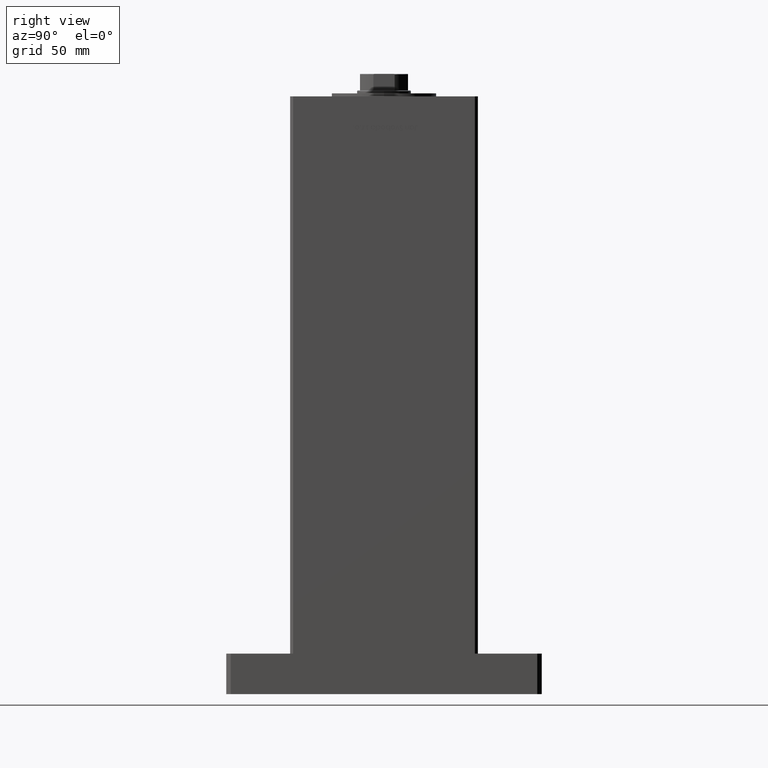
[diagram: clean part render]
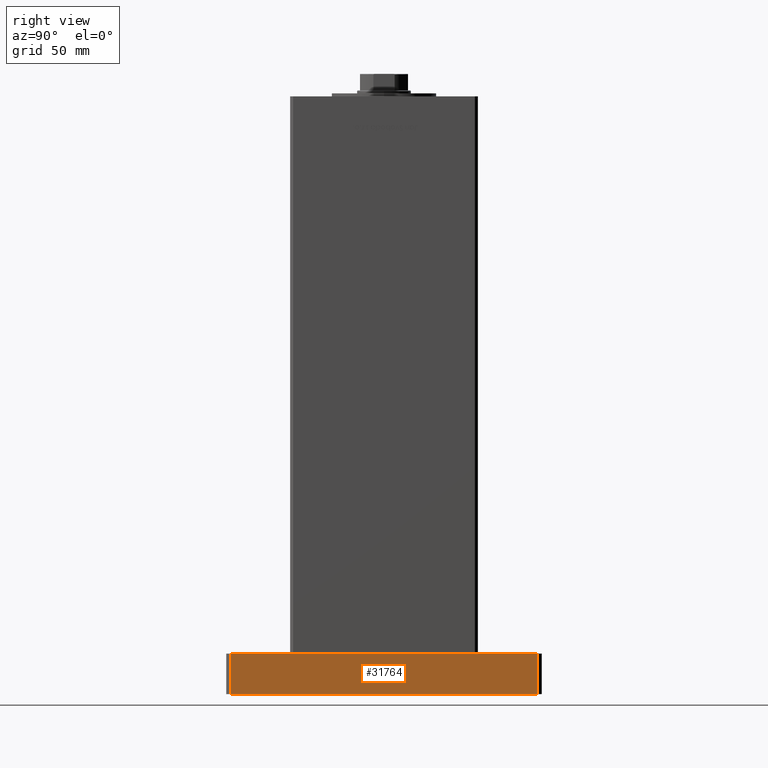
[diagram: same view with one face highlighted and labeled with its STEP entity id]
A machine part, right view. The second image highlights one B-rep face of the part: STEP entity #31764.
In plain terms, the highlighted planar face has unit normal (-1, 0, 0).
Its self-contained STEP definition (entity closure, byte-faithful):
#2034 = ORIENTED_EDGE ( 'NONE', *, *, #24457, .T. ) ;
#3323 = LINE ( 'NONE', #7211, #27870 ) ;
#3789 = CARTESIAN_POINT ( 'NONE',  ( 75.00000000000000000, -101.9999999999999005, 27.00000000000000000 ) ) ;
#4608 = EDGE_LOOP ( 'NONE', ( #2034, #15281, #33470, #36655 ) ) ;
#4916 = EDGE_CURVE ( 'NONE', #11032, #18243, #41191, .T. ) ;
#5781 = VECTOR ( 'NONE', #43929, 1000.000000000000000 ) ;
#6654 = DIRECTION ( 'NONE',  ( -0.000000000000000000, -0.000000000000000000, -1.000000000000000000 ) ) ;
#7211 = CARTESIAN_POINT ( 'NONE',  ( 75.00000000000000000, -101.9999999999999005, 27.00000000000000000 ) ) ;
#7694 = DIRECTION ( 'NONE',  ( -1.000000000000000000, 6.802837160693364103E-17, 0.000000000000000000 ) ) ;
#8974 = VECTOR ( 'NONE', #24577, 1000.000000000000000 ) ;
#9561 = CARTESIAN_POINT ( 'NONE',  ( 75.00000000000000000, -101.9999999999999005, 0.000000000000000000 ) ) ;
#11032 = VERTEX_POINT ( 'NONE', #13766 ) ;
#13766 = CARTESIAN_POINT ( 'NONE',  ( 75.00000000000000000, -101.9999999999999005, 27.00000000000000000 ) ) ;
#15281 = ORIENTED_EDGE ( 'NONE', *, *, #20793, .F. ) ;
#18243 = VERTEX_POINT ( 'NONE', #45837 ) ;
#20793 = EDGE_CURVE ( 'NONE', #18243, #47921, #36111, .T. ) ;
#20989 = PLANE ( 'NONE',  #47592 ) ;
#21266 = DIRECTION ( 'NONE',  ( -6.802837160693364103E-17, -1.000000000000000000, 0.000000000000000000 ) ) ;
#21340 = CARTESIAN_POINT ( 'NONE',  ( 75.00000000000000000, -101.9999999999999005, 0.000000000000000000 ) ) ;
#22220 = EDGE_CURVE ( 'NONE', #11032, #27161, #3323, .T. ) ;
#24457 = EDGE_CURVE ( 'NONE', #27161, #47921, #47524, .T. ) ;
#24577 = DIRECTION ( 'NONE',  ( 6.802837160693364103E-17, 1.000000000000000000, 0.000000000000000000 ) ) ;
#27161 = VERTEX_POINT ( 'NONE', #21340 ) ;
#27870 = VECTOR ( 'NONE', #6654, 1000.000000000000000 ) ;
#30482 = CARTESIAN_POINT ( 'NONE',  ( 75.00000000000001421, 102.0000000000000142, 0.000000000000000000 ) ) ;
#31764 = ADVANCED_FACE ( 'NONE', ( #53723 ), #20989, .F. ) ;
#33470 = ORIENTED_EDGE ( 'NONE', *, *, #4916, .F. ) ;
#36111 = LINE ( 'NONE', #53030, #48161 ) ;
#36655 = ORIENTED_EDGE ( 'NONE', *, *, #22220, .T. ) ;
#37299 = CARTESIAN_POINT ( 'NONE',  ( 75.00000000000000000, -101.9999999999999005, 27.00000000000000000 ) ) ;
#41191 = LINE ( 'NONE', #37299, #8974 ) ;
#43929 = DIRECTION ( 'NONE',  ( 6.802837160693364103E-17, 1.000000000000000000, 0.000000000000000000 ) ) ;
#44695 = DIRECTION ( 'NONE',  ( -0.000000000000000000, -0.000000000000000000, -1.000000000000000000 ) ) ;
#45837 = CARTESIAN_POINT ( 'NONE',  ( 75.00000000000001421, 102.0000000000000142, 27.00000000000000000 ) ) ;
#47524 = LINE ( 'NONE', #9561, #5781 ) ;
#47592 = AXIS2_PLACEMENT_3D ( 'NONE', #3789, #7694, #21266 ) ;
#47921 = VERTEX_POINT ( 'NONE', #30482 ) ;
#48161 = VECTOR ( 'NONE', #44695, 1000.000000000000000 ) ;
#53030 = CARTESIAN_POINT ( 'NONE',  ( 75.00000000000001421, 102.0000000000000142, 27.00000000000000000 ) ) ;
#53723 = FACE_OUTER_BOUND ( 'NONE', #4608, .T. ) ;